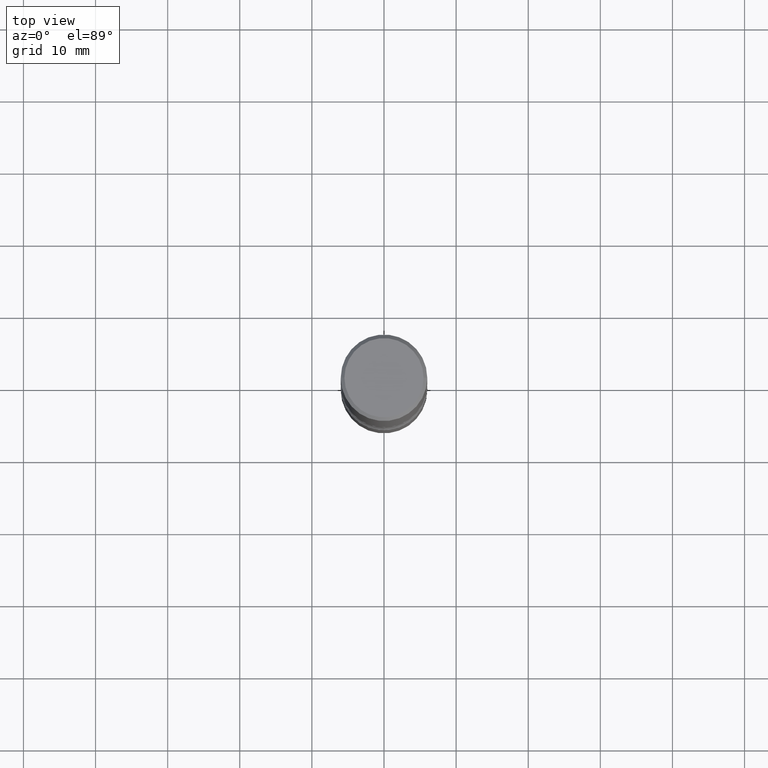
[diagram: clean part render]
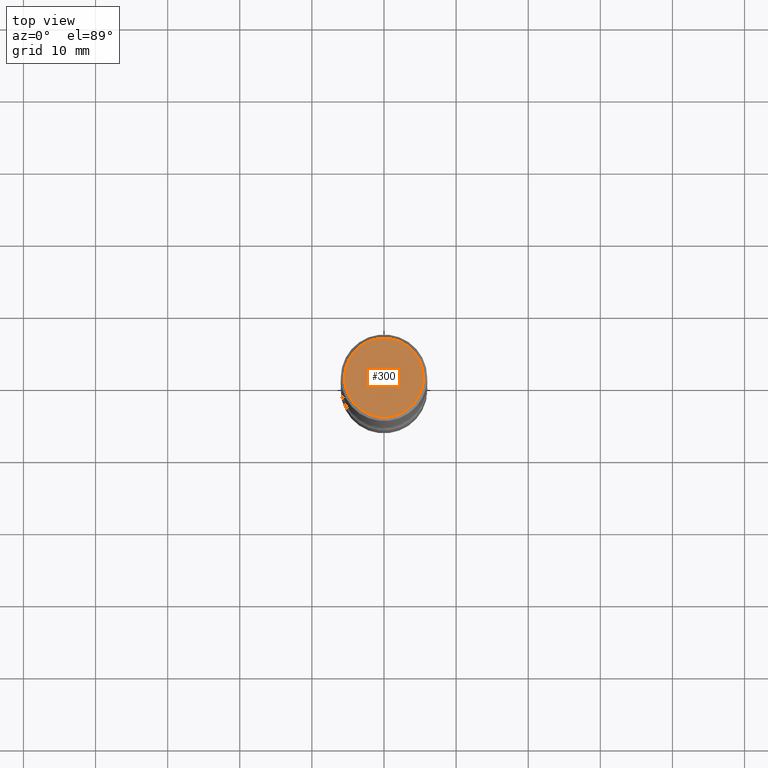
[diagram: same view with one face highlighted and labeled with its STEP entity id]
A machine part, top view. The second image highlights one B-rep face of the part: STEP entity #300.
In plain terms, the highlighted planar face has unit normal (0, -0, -1).
Its self-contained STEP definition (entity closure, byte-faithful):
#31 = DIRECTION ( 'NONE',  ( -2.445468806185136597E-29, 3.491481338843145583E-15, 1.000000000000000000 ) ) ;
#37 = AXIS2_PLACEMENT_3D ( 'NONE', #478, #141, #305 ) ;
#62 = AXIS2_PLACEMENT_3D ( 'NONE', #475, #121, #163 ) ;
#87 = CARTESIAN_POINT ( 'NONE',  ( -0.2161999999999998368, 1.544631344304201183E-15, 4.268512490089730842E-18 ) ) ;
#97 = ORIENTED_EDGE ( 'NONE', *, *, #270, .T. ) ;
#120 = EDGE_LOOP ( 'NONE', ( #326, #97 ) ) ;
#121 = DIRECTION ( 'NONE',  ( -2.445468806185136597E-29, 3.491481338843145583E-15, 1.000000000000000000 ) ) ;
#130 = DIRECTION ( 'NONE',  ( 1.000000000000000000, -6.982962677686266711E-15, 4.876217060660159599E-29 ) ) ;
#141 = DIRECTION ( 'NONE',  ( 2.438088387897960049E-29, -3.491481338843145188E-15, -1.000000000000000000 ) ) ;
#163 = DIRECTION ( 'NONE',  ( 1.000000000000000000, -6.982962677686266711E-15, 4.876217060660159599E-29 ) ) ;
#201 = VERTEX_POINT ( 'NONE', #87 ) ;
#207 = CIRCLE ( 'NONE', #62, 0.2161999999999998368 ) ;
#225 = PLANE ( 'NONE',  #37 ) ;
#227 = CARTESIAN_POINT ( 'NONE',  ( 0.2161999999999998368, -1.586759460484351002E-15, 4.268512490111238857E-18 ) ) ;
#270 = EDGE_CURVE ( 'NONE', #342, #201, #404, .T. ) ;
#300 = ADVANCED_FACE ( 'NONE', ( #351 ), #225, .F. ) ;
#305 = DIRECTION ( 'NONE',  ( -1.000000000000000000, 6.982962677686265922E-15, -4.876176775795935793E-29 ) ) ;
#326 = ORIENTED_EDGE ( 'NONE', *, *, #426, .T. ) ;
#342 = VERTEX_POINT ( 'NONE', #227 ) ;
#351 = FACE_OUTER_BOUND ( 'NONE', #120, .T. ) ;
#404 = CIRCLE ( 'NONE', #493, 0.2161999999999998368 ) ;
#415 = CARTESIAN_POINT ( 'NONE',  ( -1.043851414335219820E-46, 1.490343170380447200E-32, 4.268512490100411279E-18 ) ) ;
#426 = EDGE_CURVE ( 'NONE', #201, #342, #207, .T. ) ;
#475 = CARTESIAN_POINT ( 'NONE',  ( -1.043851414335219820E-46, 1.490343170380447200E-32, 4.268512490100411279E-18 ) ) ;
#478 = CARTESIAN_POINT ( 'NONE',  ( 1.509716530915769534E-15, 0.2161999999999998368, -7.527240092128373149E-16 ) ) ;
#493 = AXIS2_PLACEMENT_3D ( 'NONE', #415, #31, #130 ) ;